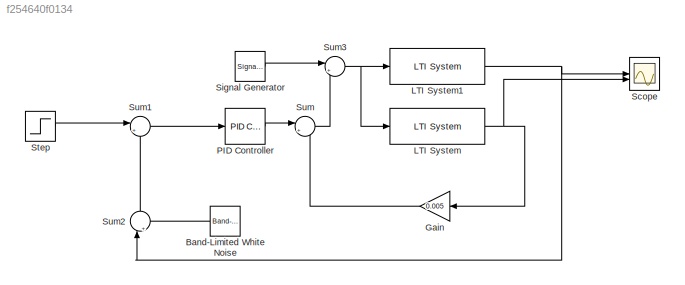
MODEL slx_f254640f0134
KIND model
CONFIG AbsTol = auto
CONFIG EnableMultiTasking = off
CONFIG FixedStep = auto
CONFIG MaxStep = auto
CONFIG MinStep = auto
CONFIG RelTol = 1e-3
CONFIG SampleTimeConstraint = Unconstrained
CONFIG SolverName = VariableStepAuto
CONFIG StartTime = 0.0
CONFIG StopTime = 10
BLOCK [Reference] Band-Limited White Noise  REF=simulink/Sources/Band-Limited
White Noise
  NameLocation = top
  SourceBlock = simulink/Sources/Band-Limited\nWhite Noise
  SourceType = Band-Limited White Noise.
BLOCK [Gain] Gain
  Gain = 0.005
  NameLocation = top
BLOCK [Reference] LTI System  REF=cstblocks/LTI System
  SourceBlock = cstblocks/LTI System
  SourceType = LTI Block
BLOCK [Reference] LTI System1  REF=cstblocks/LTI System
  SourceBlock = cstblocks/LTI System
  SourceType = LTI Block
BLOCK [Reference] PID Controller  REF=slpidlib/PID Controller
  LibrarySourceBlock = simulink/Continuous/PID Controller
  NameLocation = top
  SourceBlock = slpidlib/PID Controller
  SourceType = PID 1dof
BLOCK [Scope] Scope
  ActiveDisplayYMaximum = 3.2378813479482879E+42
  ActiveDisplayYMinimum = -2.91409321315346E+43
  Floating = off
  GraphicalSettings = {"Style":{"BackgroundColor":[0.6784313725490196,0.9176470588235294,1],"AxesColor":[1,1,1],"LabelsColor":[0,0,0],"PreserveColors":false,"Visible":[true,true],"LineStyle":["-","-"],"LineWidth":[2,2],"BarWidth":[0.9,0.9],"LineColor":[[0,0,1],[0,0.4980392156862745,0]],"LineFaceAlpha":[1,1],"LineEdgeAlpha":[1,1],"Marker":["none","none"],"FontSize":8.5,"LineTrueColor":[[0,0,1],[0,0.4980392156862745,0]],...<+2306ch>
  LayoutDimensionsString = [2 1]
  MultipleDisplayCache = [{"MaxYLimMag":2.91409321315346E+43,"MaxYLimReal":3.2378813479482879E+42,"MinYLimMag":0,"MinYLimReal":-2.91409321315346E+43,"PlotAsMagnitudePhase":false,"ShowGrid":true,"ShowLegend":false,"Title":"%<SignalLabel>","YLabel":""},{"MaxYLimMag":3.280795453688753E+43,"MaxYLimReal":3.6453282818763918E+42,"MinYLimMag":0,"MinYLimReal":-3.280795453688753E+43,"PlotAsMagnitudePhase":false,"ShowGrid":true,"Sho...<+53ch>
  NumInputPorts = 2
  ScopeFrameLocation = window
  Visible = on
  WasSavedAsWebScope = on
  WindowPosition = [-192.000000,-43.000000,1539.000000,844.000000,]
BLOCK [SignalGenerator] Signal Generator
  Amplitude = 0.2
  Frequency = 6
  Units = rad/sec
  WaveForm = sawtooth
BLOCK [Step] Step
  SampleTime = 0
BLOCK [Sum] Sum
  Inputs = |+-
BLOCK [Sum] Sum1
  Inputs = |+-
BLOCK [Sum] Sum2
  Inputs = |++
  NameLocation = right
BLOCK [Sum] Sum3
  Inputs = |++
LINE Band-Limited White Noise:1 -> Sum2:2
LINE Gain:1 -> Sum:2
NET LTI System1:1 -> Scope:1, Sum2:1
NET LTI System:1 -> Gain:1, Scope:2
LINE PID Controller:1 -> Sum:1
LINE Signal Generator:1 -> Sum3:1
LINE Step:1 -> Sum1:1
LINE Sum1:1 -> PID Controller:1
LINE Sum2:1 -> Sum1:2
NET Sum3:1 -> LTI System1:1, LTI System:1
LINE Sum:1 -> Sum3:2
note: NET lines group one-source signal fan-out (src -> all destinations, sorted); 1:1 wires keep LINE
